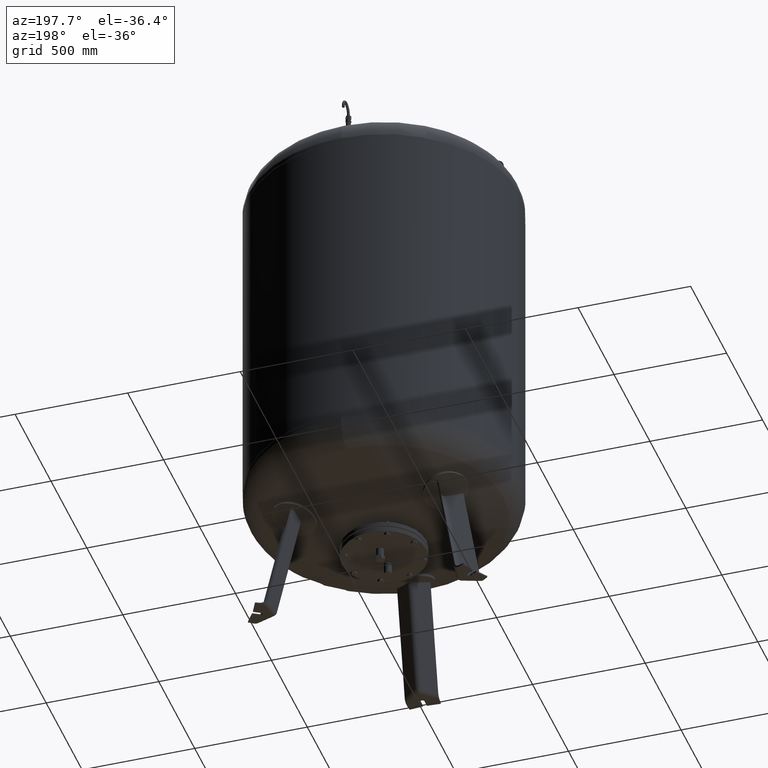
[diagram: clean part render]
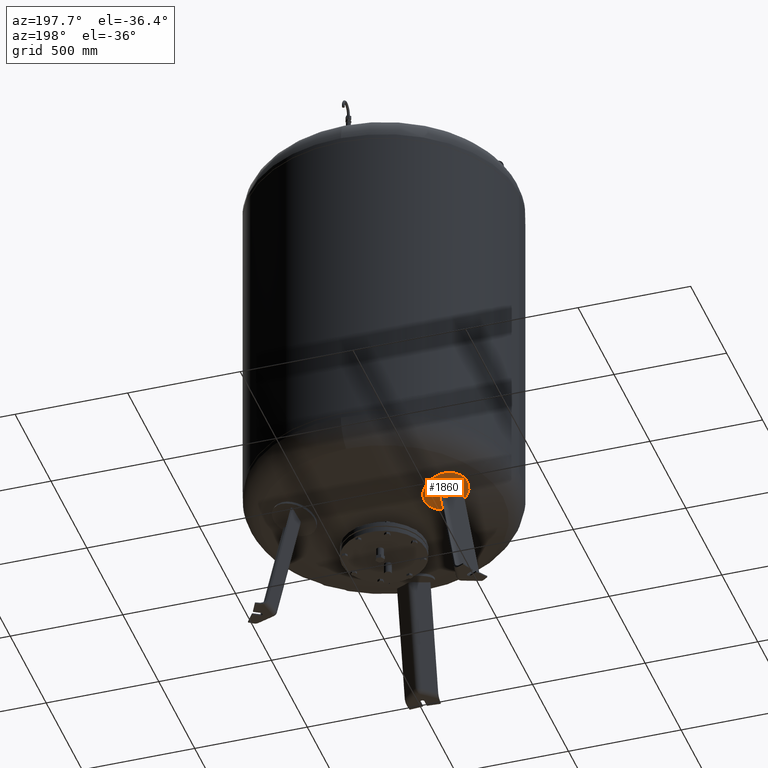
[diagram: same view with one face highlighted and labeled with its STEP entity id]
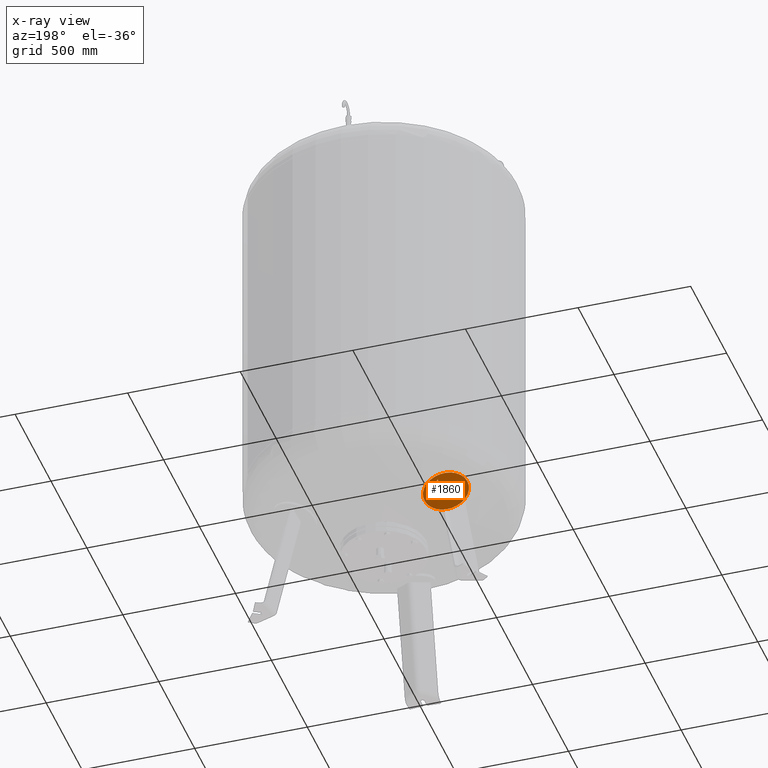
[diagram: x-ray of the same camera — body ghosted, the highlighted face saturated]
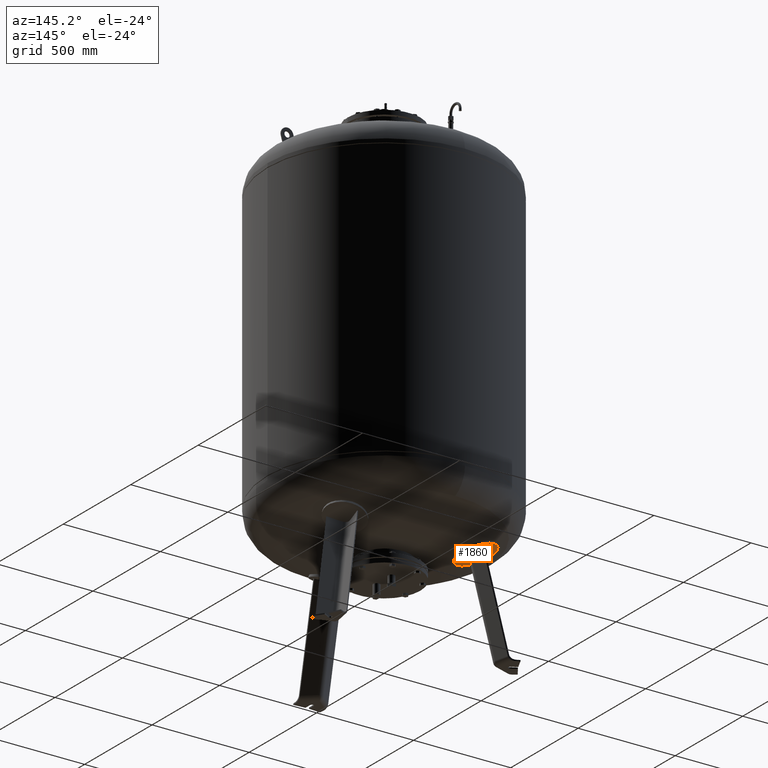
[diagram: same view with one face highlighted and labeled with its STEP entity id]
A machine part, auxiliary view. The second image highlights one B-rep face of the part: STEP entity #1860.
The next image is the same camera in x-ray: the body ghosted, the highlighted face saturated — about 0% of this face is hidden behind the body in this view.
A second angle (auxiliary view) of the same face is appended — the face is thin or edge-on in the first view.
In plain terms, the highlighted spherical surface has radius 1006 mm.
Its self-contained STEP definition (entity closure, byte-faithful):
#1090=CARTESIAN_POINT('',(-255.276761255100330,147.192965508267150,486.033440505856840));
#1091=VERTEX_POINT('',#1090);
#1100=CARTESIAN_POINT('',(-419.045382498917260,241.744823068198850,551.147071397288300));
#1101=VERTEX_POINT('',#1100);
#1102=CARTESIAN_POINT('',(-337.161071877008910,194.468894288233060,518.590255951572660));
#1103=DIRECTION('',(-0.281950292423114,0.162784077228579,-0.945518575599317));
#1104=DIRECTION('',(0.818843106219085,-0.472759287799659,-0.325568154457157));
#1105=AXIS2_PLACEMENT_3D('',#1102,#1103,#1104);
#1106=CIRCLE('',#1105,100.0);
#1107=EDGE_CURVE('',#1101,#1091,#1106,.T.);
#1727=CARTESIAN_POINT('',(-54.923900003599442,31.519187131801232,1465.070880027170500));
#1728=DIRECTION('',(-0.500000000000000,-0.866025403784438,-1.281861E-017));
#1729=DIRECTION('',(0.818843106219085,-0.472759287799659,-0.325568154457157));
#1730=AXIS2_PLACEMENT_3D('',#1727,#1728,#1729);
#1731=SPHERICAL_SURFACE('',#1730,1006.0);
#1732=CARTESIAN_POINT('',(-337.161071877008910,194.468894288233060,518.590255951572660));
#1733=DIRECTION('',(-0.281950292423114,0.162784077228579,-0.945518575599317));
#1734=DIRECTION('',(0.818843106219085,-0.472759287799659,-0.325568154457157));
#1735=AXIS2_PLACEMENT_3D('',#1732,#1733,#1734);
#1736=CIRCLE('',#1735,100.0);
#1737=EDGE_CURVE('',#1091,#1101,#1736,.T.);
#1738=ORIENTED_EDGE('',*,*,#1737,.T.);
#1739=ORIENTED_EDGE('',*,*,#1107,.T.);
#1740=EDGE_LOOP('',(#1738,#1739));
#1741=FACE_OUTER_BOUND('',#1740,.T.);
#1742=CARTESIAN_POINT('',(-325.379557651966650,169.225206742211500,505.942739782580020));
#1743=VERTEX_POINT('',#1742);
#1744=CARTESIAN_POINT('',(-393.600983866293460,142.375144417631130,524.302688812935000));
#1745=VERTEX_POINT('',#1744);
#1746=CARTESIAN_POINT('',(-75.615859376168203,91.022755047239627,1475.203780025492300));
#1747=DIRECTION('',(-0.324282864533177,0.932535537409927,0.158802063077709));
#1748=DIRECTION('',(-0.180056805991956,0.103955845408880,-0.978147600733805));
#1749=AXIS2_PLACEMENT_3D('',#1746,#1747,#1748);
#1750=CIRCLE('',#1749,1003.974348556914600);
#1751=EDGE_CURVE('',#1743,#1745,#1750,.T.);
#1752=ORIENTED_EDGE('',*,*,#1751,.F.);
#1753=CARTESIAN_POINT('',(-309.242146051814070,197.173804724745370,505.947959126467590));
#1754=VERTEX_POINT('',#1753);
#1755=CARTESIAN_POINT('',(-309.242146051814070,197.173804724745370,505.947959126467590));
#1756=CARTESIAN_POINT('',(-309.163063668117330,196.667362939196920,505.839519935654040));
#1757=CARTESIAN_POINT('',(-309.099489876659160,196.156939629008060,505.734934896781850));
#1758=CARTESIAN_POINT('',(-308.953981830104850,194.594420953712980,505.429103824092690));
#1759=CARTESIAN_POINT('',(-308.922454473519170,193.533735565852770,505.241116411709530));
#1760=CARTESIAN_POINT('',(-308.993074655460190,191.412356006654280,504.904132145277800));
#1761=CARTESIAN_POINT('',(-309.095270320789890,190.350212576807510,504.754905007621570));
#1762=CARTESIAN_POINT('',(-309.431062941992540,188.245614701700670,504.498091049258280));
#1763=CARTESIAN_POINT('',(-309.664664000571630,187.203160758028590,504.390505482463710));
#1764=CARTESIAN_POINT('',(-310.256175923691220,185.159964409015520,504.218613051497190));
#1765=CARTESIAN_POINT('',(-310.614143977389290,184.159062260994690,504.154295924989920));
#1766=CARTESIAN_POINT('',(-311.442715335609990,182.219481341795700,504.068989992027010));
#1767=CARTESIAN_POINT('',(-311.913332669533700,181.280808341221360,504.048006248182790));
#1768=CARTESIAN_POINT('',(-312.951293272684270,179.483150457051720,504.047670768673360));
#1769=CARTESIAN_POINT('',(-313.529888674724300,178.605049503326200,504.068378031877960));
#1770=CARTESIAN_POINT('',(-314.797560410366370,176.915577940766720,504.153252291123410));
#1771=CARTESIAN_POINT('',(-315.486624700107540,176.104198039953130,504.217414209798390));
#1772=CARTESIAN_POINT('',(-316.963013097652720,174.568811842687950,504.389117041742050));
#1773=CARTESIAN_POINT('',(-317.750447390605020,173.844675763198720,504.496668222473030));
#1774=CARTESIAN_POINT('',(-319.408218660953030,172.500705832385050,504.753530564510750));
#1775=CARTESIAN_POINT('',(-320.278553154731870,171.880868677880070,504.902840471794430));
#1776=CARTESIAN_POINT('',(-322.083676095723150,170.758860268795420,505.240100544597230));
#1777=CARTESIAN_POINT('',(-323.019700268691570,170.255921070576330,505.428281643566950));
#1778=CARTESIAN_POINT('',(-324.440903625329840,169.604430845692320,505.732921779836370));
#1779=CARTESIAN_POINT('',(-324.908133674332930,169.407325679647560,505.835954876961470));
#1780=CARTESIAN_POINT('',(-325.379557651966650,169.225206742211500,505.942739782580020));
#1781=B_SPLINE_CURVE_WITH_KNOTS('',3,(#1755,#1756,#1757,#1758,#1759,#1760,#1761,#1762,#1763,#1764,#1765,#1766,#1767,#1768,#1769,#1770,#1771,#1772,#1773,#1774,#1775,#1776,#1777,#1778,#1779,#1780),.UNSPECIFIED.,.F.,.U.,(4,2,2,2,2,2,2,2,2,2,2,2,4),(32.794903054826207,34.316215825106944,37.427572589502290,40.538929353897636,43.650286118292982,46.761642882688328,49.872999647083674,52.989036057429090,56.105072467774505,59.221108878119921,62.337145288465337,65.453181698810752,66.953203267256470),.UNSPECIFIED.);
#1782=EDGE_CURVE('',#1754,#1743,#1781,.T.);
#1783=ORIENTED_EDGE('',*,*,#1782,.F.);
#1784=CARTESIAN_POINT('',(-320.096570269069050,269.678330582397960,524.326665410275270));
#1785=VERTEX_POINT('',#1784);
#1786=CARTESIAN_POINT('',(-116.594257655732240,19.726790213880122,1475.169845689218200));
#1787=DIRECTION('',(-0.969740897595359,-0.185430570007244,0.158802063077708));
#1788=DIRECTION('',(-0.180056805991956,0.103955845408880,-0.978147600733805));
#1789=AXIS2_PLACEMENT_3D('',#1786,#1787,#1788);
#1790=CIRCLE('',#1789,1003.987906926445600);
#1791=EDGE_CURVE('',#1785,#1754,#1790,.T.);
#1792=ORIENTED_EDGE('',*,*,#1791,.F.);
#1793=CARTESIAN_POINT('',(-326.337683684044410,272.517072802429480,526.832862714638170));
#1794=VERTEX_POINT('',#1793);
#1795=CARTESIAN_POINT('',(-18.490390265466999,110.162111656697140,1466.722256883460400));
#1796=DIRECTION('',(-0.420282416002408,-0.907193365623647,-0.019049623818306));
#1797=DIRECTION('',(0.009563295541659,0.016564113765950,-0.999817070025078));
#1798=AXIS2_PLACEMENT_3D('',#1795,#1796,#1797);
#1799=CIRCLE('',#1798,1002.258032018108500);
#1800=EDGE_CURVE('',#1794,#1785,#1799,.T.);
#1801=ORIENTED_EDGE('',*,*,#1800,.F.);
#1802=CARTESIAN_POINT('',(-315.671290026426850,200.885672729146850,508.325463444113210));
#1803=VERTEX_POINT('',#1802);
#1804=CARTESIAN_POINT('',(-122.338869528974440,18.628324987996479,1476.110567297756700));
#1805=DIRECTION('',(0.969740897595359,0.185430570007244,-0.158802063077709));
#1806=DIRECTION('',(0.180056805991956,-0.103955845408880,0.978147600733806));
#1807=AXIS2_PLACEMENT_3D('',#1804,#1805,#1806);
#1808=CIRCLE('',#1807,1003.595123972834800);
#1809=EDGE_CURVE('',#1803,#1794,#1808,.T.);
#1810=ORIENTED_EDGE('',*,*,#1809,.F.);
#1811=CARTESIAN_POINT('',(-331.808702377670270,172.937075180255530,508.320240019970470));
#1812=VERTEX_POINT('',#1811);
#1813=CARTESIAN_POINT('',(-331.808702377670270,172.937075180255530,508.320240019970470));
#1814=CARTESIAN_POINT('',(-331.546519475813170,173.038612697864320,508.259372289933540));
#1815=CARTESIAN_POINT('',(-331.286739663182120,173.144363590979420,508.199952659748990));
#1816=CARTESIAN_POINT('',(-330.011428829325150,173.688670958514360,507.912602619461320));
#1817=CARTESIAN_POINT('',(-329.038050774177290,174.185705033286070,507.707401644527640));
#1818=CARTESIAN_POINT('',(-327.235940967907650,175.248475316531880,507.352151483820360));
#1819=CARTESIAN_POINT('',(-326.329554279660670,175.859068307331510,507.186631956602980));
#1820=CARTESIAN_POINT('',(-324.568943989502600,177.226076869395170,506.896409636033180));
#1821=CARTESIAN_POINT('',(-323.714728072690150,177.982503185788660,506.771710833648460));
#1822=CARTESIAN_POINT('',(-322.112119881016040,179.604733601374160,506.572869613931570));
#1823=CARTESIAN_POINT('',(-321.363090904517550,180.471185706097910,506.498648705277670));
#1824=CARTESIAN_POINT('',(-320.006200338968710,182.260457440243900,506.402164326406820));
#1825=CARTESIAN_POINT('',(-319.398331988079800,183.183271782970910,506.379897910233810));
#1826=CARTESIAN_POINT('',(-318.341139962768520,185.014236718257050,506.380239856651490));
#1827=CARTESIAN_POINT('',(-317.846375659886120,186.000757395640420,506.402806025775360));
#1828=CARTESIAN_POINT('',(-316.975889213664290,188.067715347938640,506.499769920901030));
#1829=CARTESIAN_POINT('',(-316.600175170951620,189.148155893692490,506.574170645728710));
#1830=CARTESIAN_POINT('',(-315.996493425836430,191.344205623475520,506.773237798320680));
#1831=CARTESIAN_POINT('',(-315.768283423039520,192.460686887187420,506.897982609829510));
#1832=CARTESIAN_POINT('',(-315.463904466586540,194.665986364416200,507.188169031350010));
#1833=CARTESIAN_POINT('',(-315.387722188888120,195.754803271306460,507.353606595328530));
#1834=CARTESIAN_POINT('',(-315.366943985116450,197.844174277230020,507.708592610853430));
#1835=CARTESIAN_POINT('',(-315.422265035923260,198.934332790210530,507.913606462838800));
#1836=CARTESIAN_POINT('',(-315.587984997366160,200.316442869307760,508.202129029618390));
#1837=CARTESIAN_POINT('',(-315.627092896216940,200.601075048771120,508.263037646980650));
#1838=CARTESIAN_POINT('',(-315.671290026426850,200.885672729146850,508.325463444113210));
#1839=B_SPLINE_CURVE_WITH_KNOTS('',3,(#1813,#1814,#1815,#1816,#1817,#1818,#1819,#1820,#1821,#1822,#1823,#1824,#1825,#1826,#1827,#1828,#1829,#1830,#1831,#1832,#1833,#1834,#1835,#1836,#1837,#1838),.UNSPECIFIED.,.F.,.U.,(4,2,2,2,2,2,2,2,2,2,2,2,4),(34.351574704530236,35.157137084380075,38.350021909641775,41.523419197935439,44.696816486229096,47.870213774522753,51.043611062816417,54.212988341383024,57.382365619949638,60.551742898516245,63.721120177082852,66.909986527717621,67.735047143007677),.UNSPECIFIED.);
#1840=EDGE_CURVE('',#1812,#1803,#1839,.T.);
#1841=ORIENTED_EDGE('',*,*,#1840,.F.);
#1842=CARTESIAN_POINT('',(-399.179928245355650,146.360715746824160,526.809077370483350));
#1843=VERTEX_POINT('',#1842);
#1844=CARTESIAN_POINT('',(-77.536866522000253,96.546967477290849,1476.144501634031000));
#1845=DIRECTION('',(0.324282864533177,-0.932535537409927,-0.158802063077709));
#1846=DIRECTION('',(0.180056805991956,-0.103955845408880,0.978147600733805));
#1847=AXIS2_PLACEMENT_3D('',#1844,#1845,#1846);
#1848=CIRCLE('',#1847,1003.580298946269700);
#1849=EDGE_CURVE('',#1843,#1812,#1848,.T.);
#1850=ORIENTED_EDGE('',*,*,#1849,.F.);
#1851=CARTESIAN_POINT('',(-104.624184539388920,-39.085087972495614,1466.715976719377300));
#1852=DIRECTION('',(0.575511292773579,0.817571931833808,-0.019049623818306));
#1853=DIRECTION('',(0.009563295541659,0.016564113765950,0.999817070025078));
#1854=AXIS2_PLACEMENT_3D('',#1851,#1852,#1853);
#1855=CIRCLE('',#1854,1002.286491833014600);
#1856=EDGE_CURVE('',#1745,#1843,#1855,.T.);
#1857=ORIENTED_EDGE('',*,*,#1856,.F.);
#1858=EDGE_LOOP('',(#1752,#1783,#1792,#1801,#1810,#1841,#1850,#1857));
#1859=FACE_BOUND('',#1858,.T.);
#1860=ADVANCED_FACE('',(#1741,#1859),#1731,.T.);